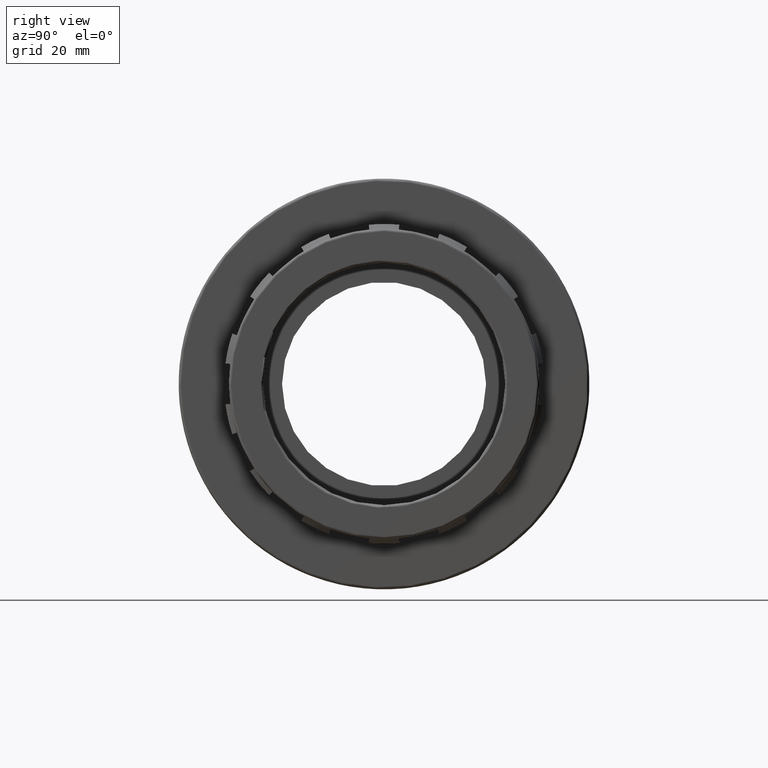
[diagram: clean part render]
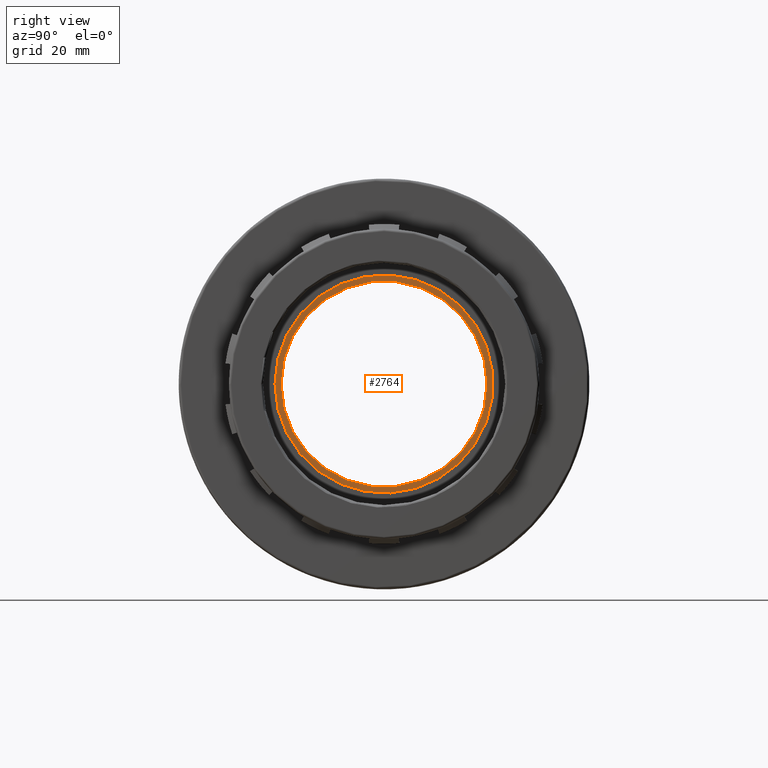
[diagram: same view with one face highlighted and labeled with its STEP entity id]
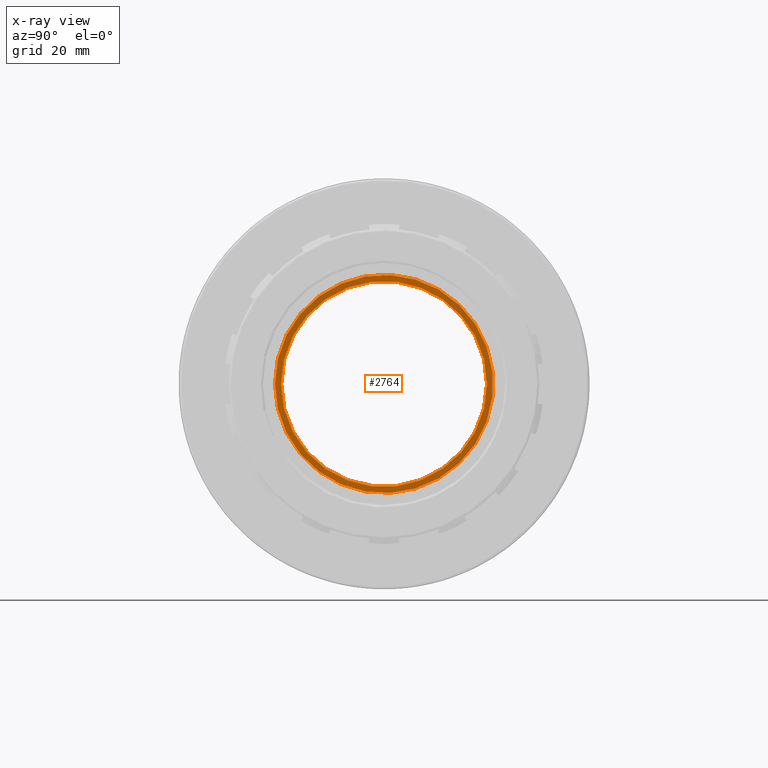
[diagram: x-ray of the same camera — body ghosted, the highlighted face saturated]
A machine part, right view. The second image highlights one B-rep face of the part: STEP entity #2764.
The next image is the same camera in x-ray: the body ghosted, the highlighted face saturated — about 0% of this face is hidden behind the body in this view.
In plain terms, the highlighted planar face has unit normal (1, 0, 0).
Its self-contained STEP definition (entity closure, byte-faithful):
#69=FACE_BOUND('',#545,.T.);
#231=CIRCLE('',#3050,24.0788);
#232=CIRCLE('',#3052,25.4952);
#378=FACE_OUTER_BOUND('',#544,.T.);
#544=EDGE_LOOP('',(#2517));
#545=EDGE_LOOP('',(#2518));
#1336=VERTEX_POINT('',#4698);
#1337=VERTEX_POINT('',#4701);
#1733=EDGE_CURVE('',#1336,#1336,#231,.T.);
#1734=EDGE_CURVE('',#1337,#1337,#232,.T.);
#2517=ORIENTED_EDGE('',*,*,#1734,.F.);
#2518=ORIENTED_EDGE('',*,*,#1733,.T.);
#2617=PLANE('',#3051);
#2764=ADVANCED_FACE('',(#378,#69),#2617,.T.);
#3050=AXIS2_PLACEMENT_3D('',#4699,#3877,#3878);
#3051=AXIS2_PLACEMENT_3D('',#4700,#3879,#3880);
#3052=AXIS2_PLACEMENT_3D('',#4702,#3881,#3882);
#3877=DIRECTION('center_axis',(-1.,-1.83697019872103E-16,0.));
#3878=DIRECTION('ref_axis',(0.,0.,1.));
#3879=DIRECTION('center_axis',(1.,1.83697019872103E-16,0.));
#3880=DIRECTION('ref_axis',(0.,0.,-1.));
#3881=DIRECTION('center_axis',(-1.,-1.83697019872103E-16,0.));
#3882=DIRECTION('ref_axis',(0.,0.,1.));
#4698=CARTESIAN_POINT('',(20.8,-24.0788,0.));
#4699=CARTESIAN_POINT('Origin',(20.8,1.33731430466891E-14,0.));
#4700=CARTESIAN_POINT('Origin',(20.8,-25.4952,0.));
#4701=CARTESIAN_POINT('',(20.8,-25.4952,0.));
#4702=CARTESIAN_POINT('Origin',(20.8,1.33731430466891E-14,0.));